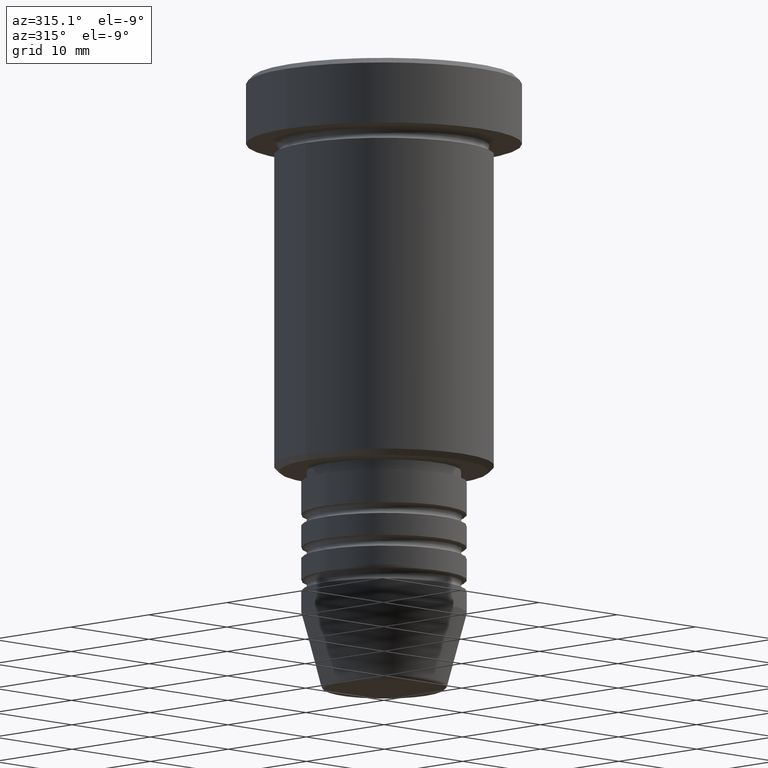
[diagram: clean part render]
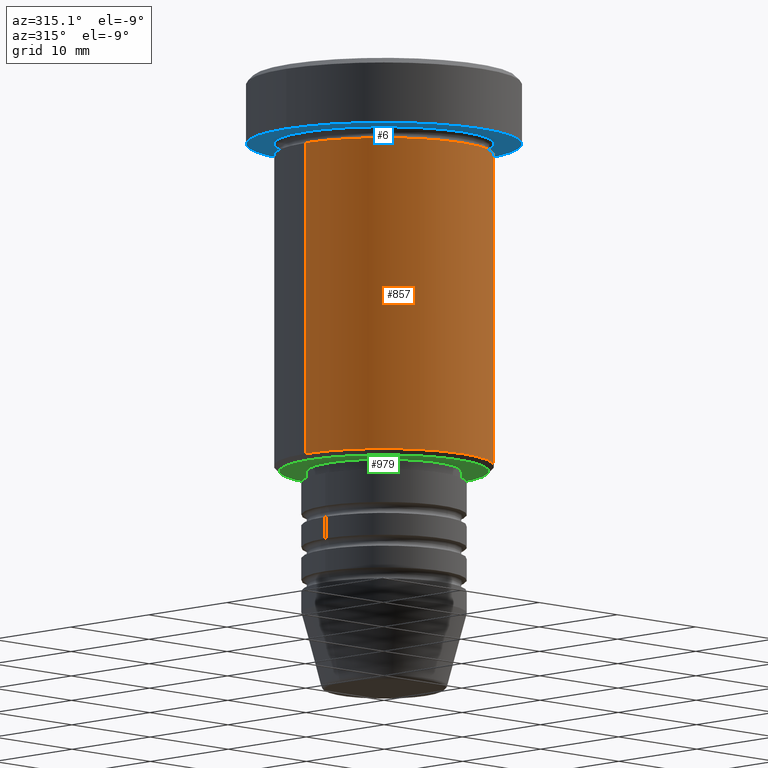
[diagram: same view with three faces highlighted in distinct colors, each labeled with its STEP entity id]
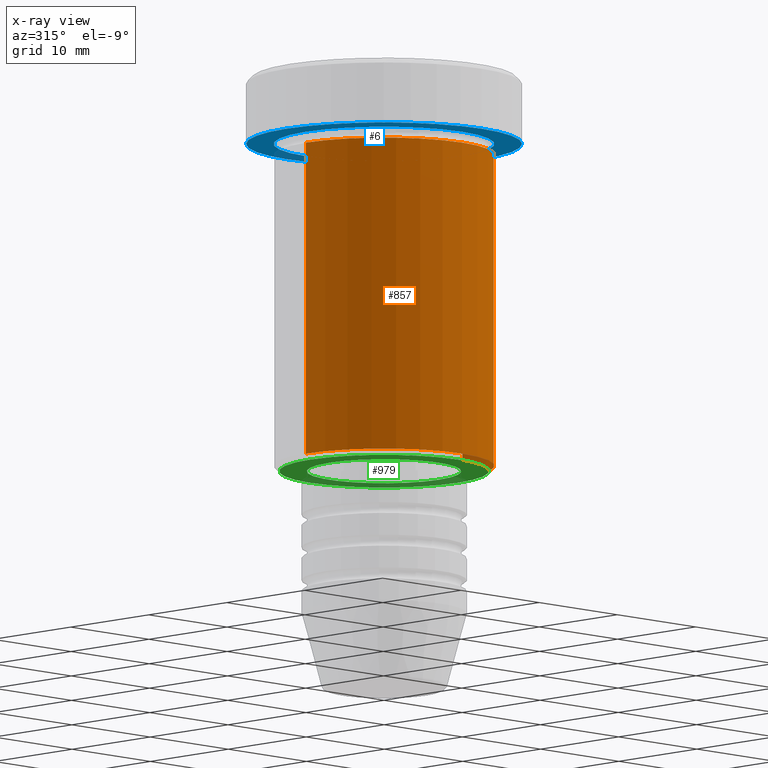
[diagram: x-ray of the same camera — body ghosted, the three highlighted faces saturated]
A machine part, auxiliary view with three faces highlighted in distinct colors.
The next image is the same camera in x-ray (body ghosted, the three faces saturated) — at least one of them is partly hidden behind the body in this view.
Their STEP definitions:

[orange] entity #857 — the highlighted cylindrical surface (partial cylindrical patch) has radius 10 mm, axis along (-0, -0, 1).
#10 = DIRECTION ( 'NONE',  ( -0.000000000000000000, -0.000000000000000000, 1.000000000000000000 ) ) ;
#17 = AXIS2_PLACEMENT_3D ( 'NONE', #562, #10, #997 ) ;
#42 = EDGE_CURVE ( 'NONE', #392, #903, #532, .T. ) ;
#46 = DIRECTION ( 'NONE',  ( -0.000000000000000000, -0.000000000000000000, 1.000000000000000000 ) ) ;
#70 = CYLINDRICAL_SURFACE ( 'NONE', #805, 10.00000000000000000 ) ;
#75 = VECTOR ( 'NONE', #46, 1000.000000000000000 ) ;
#79 = ORIENTED_EDGE ( 'NONE', *, *, #356, .F. ) ;
#92 = CIRCLE ( 'NONE', #17, 10.00000000000000000 ) ;
#140 = VECTOR ( 'NONE', #443, 1000.000000000000000 ) ;
#146 = LINE ( 'NONE', #862, #75 ) ;
#210 = VERTEX_POINT ( 'NONE', #660 ) ;
#318 = DIRECTION ( 'NONE',  ( -0.000000000000000000, -0.000000000000000000, 1.000000000000000000 ) ) ;
#348 = CARTESIAN_POINT ( 'NONE',  ( 10.00000000000000000, 0.000000000000000000, -6.999999999999996447 ) ) ;
#349 = CARTESIAN_POINT ( 'NONE',  ( 10.00000000000000000, 0.000000000000000000, 0.000000000000000000 ) ) ;
#356 = EDGE_CURVE ( 'NONE', #210, #1036, #146, .T. ) ;
#392 = VERTEX_POINT ( 'NONE', #950 ) ;
#443 = DIRECTION ( 'NONE',  ( -0.000000000000000000, -0.000000000000000000, 1.000000000000000000 ) ) ;
#474 = CARTESIAN_POINT ( 'NONE',  ( 0.000000000000000000, 0.000000000000000000, -35.50000000000000000 ) ) ;
#526 = DIRECTION ( 'NONE',  ( 1.000000000000000000, 0.000000000000000000, 0.000000000000000000 ) ) ;
#532 = LINE ( 'NONE', #349, #140 ) ;
#562 = CARTESIAN_POINT ( 'NONE',  ( 0.000000000000000000, 0.000000000000000000, -6.999999999999996447 ) ) ;
#599 = CIRCLE ( 'NONE', #1093, 10.00000000000000000 ) ;
#606 = FACE_OUTER_BOUND ( 'NONE', #634, .T. ) ;
#629 = EDGE_CURVE ( 'NONE', #1036, #903, #92, .T. ) ;
#634 = EDGE_LOOP ( 'NONE', ( #79, #922, #1040, #1057 ) ) ;
#660 = CARTESIAN_POINT ( 'NONE',  ( -10.00000000000000000, 1.224646799147353256E-15, -35.50000000000000000 ) ) ;
#771 = CARTESIAN_POINT ( 'NONE',  ( 0.000000000000000000, 0.000000000000000000, 0.000000000000000000 ) ) ;
#805 = AXIS2_PLACEMENT_3D ( 'NONE', #771, #1151, #526 ) ;
#836 = DIRECTION ( 'NONE',  ( -1.000000000000000000, 0.000000000000000000, 0.000000000000000000 ) ) ;
#857 = ADVANCED_FACE ( 'NONE', ( #606 ), #70, .T. ) ;
#862 = CARTESIAN_POINT ( 'NONE',  ( -10.00000000000000000, 1.224646799147353256E-15, 0.000000000000000000 ) ) ;
#903 = VERTEX_POINT ( 'NONE', #348 ) ;
#922 = ORIENTED_EDGE ( 'NONE', *, *, #1134, .T. ) ;
#950 = CARTESIAN_POINT ( 'NONE',  ( 10.00000000000000000, 0.000000000000000000, -35.50000000000000000 ) ) ;
#997 = DIRECTION ( 'NONE',  ( 1.000000000000000000, 0.000000000000000000, 0.000000000000000000 ) ) ;
#1036 = VERTEX_POINT ( 'NONE', #1125 ) ;
#1040 = ORIENTED_EDGE ( 'NONE', *, *, #42, .T. ) ;
#1057 = ORIENTED_EDGE ( 'NONE', *, *, #629, .F. ) ;
#1093 = AXIS2_PLACEMENT_3D ( 'NONE', #474, #318, #836 ) ;
#1125 = CARTESIAN_POINT ( 'NONE',  ( -10.00000000000000000, 1.224646799147353256E-15, -6.999999999999996447 ) ) ;
#1134 = EDGE_CURVE ( 'NONE', #210, #392, #599, .T. ) ;
#1151 = DIRECTION ( 'NONE',  ( -0.000000000000000000, -0.000000000000000000, 1.000000000000000000 ) ) ;

[blue] entity #6 — the highlighted planar face has unit normal (0, 0, -1).
#6 = ADVANCED_FACE ( 'NONE', ( #549, #1085 ), #811, .T. ) ;
#22 = EDGE_CURVE ( 'NONE', #61, #499, #543, .T. ) ;
#61 = VERTEX_POINT ( 'NONE', #276 ) ;
#89 = DIRECTION ( 'NONE',  ( -0.000000000000000000, -0.000000000000000000, 1.000000000000000000 ) ) ;
#90 = DIRECTION ( 'NONE',  ( 1.000000000000000000, 0.000000000000000000, 0.000000000000000000 ) ) ;
#111 = CIRCLE ( 'NONE', #181, 12.50000000000000000 ) ;
#166 = CARTESIAN_POINT ( 'NONE',  ( 0.000000000000000000, 12.50000000000000000, -5.999999999999996447 ) ) ;
#181 = AXIS2_PLACEMENT_3D ( 'NONE', #728, #632, #90 ) ;
#188 = ORIENTED_EDGE ( 'NONE', *, *, #22, .F. ) ;
#202 = ORIENTED_EDGE ( 'NONE', *, *, #569, .T. ) ;
#252 = CIRCLE ( 'NONE', #709, 10.00000000000000000 ) ;
#268 = DIRECTION ( 'NONE',  ( 0.000000000000000000, 0.000000000000000000, -1.000000000000000000 ) ) ;
#276 = CARTESIAN_POINT ( 'NONE',  ( -12.50000000000000000, 1.530808498934191521E-15, -5.999999999999996447 ) ) ;
#342 = DIRECTION ( 'NONE',  ( 1.000000000000000000, 0.000000000000000000, 0.000000000000000000 ) ) ;
#371 = EDGE_CURVE ( 'NONE', #672, #1152, #498, .T. ) ;
#375 = AXIS2_PLACEMENT_3D ( 'NONE', #166, #268, #1177 ) ;
#498 = CIRCLE ( 'NONE', #778, 10.00000000000000000 ) ;
#499 = VERTEX_POINT ( 'NONE', #921 ) ;
#504 = EDGE_CURVE ( 'NONE', #499, #61, #111, .T. ) ;
#543 = CIRCLE ( 'NONE', #1013, 12.50000000000000000 ) ;
#549 = FACE_BOUND ( 'NONE', #936, .T. ) ;
#569 = EDGE_CURVE ( 'NONE', #1152, #672, #252, .T. ) ;
#632 = DIRECTION ( 'NONE',  ( -0.000000000000000000, -0.000000000000000000, 1.000000000000000000 ) ) ;
#643 = CARTESIAN_POINT ( 'NONE',  ( 0.000000000000000000, 0.000000000000000000, -5.999999999999996447 ) ) ;
#672 = VERTEX_POINT ( 'NONE', #749 ) ;
#709 = AXIS2_PLACEMENT_3D ( 'NONE', #912, #812, #988 ) ;
#728 = CARTESIAN_POINT ( 'NONE',  ( 0.000000000000000000, 0.000000000000000000, -5.999999999999996447 ) ) ;
#749 = CARTESIAN_POINT ( 'NONE',  ( -10.00000000000000000, 0.000000000000000000, -5.999999999999996447 ) ) ;
#772 = EDGE_LOOP ( 'NONE', ( #1174, #188 ) ) ;
#778 = AXIS2_PLACEMENT_3D ( 'NONE', #963, #1136, #958 ) ;
#811 = PLANE ( 'NONE',  #375 ) ;
#812 = DIRECTION ( 'NONE',  ( -0.000000000000000000, -0.000000000000000000, 1.000000000000000000 ) ) ;
#850 = CARTESIAN_POINT ( 'NONE',  ( 10.00000000000000000, 1.224646799147353256E-15, -5.999999999999996447 ) ) ;
#912 = CARTESIAN_POINT ( 'NONE',  ( 0.000000000000000000, 0.000000000000000000, -5.999999999999996447 ) ) ;
#921 = CARTESIAN_POINT ( 'NONE',  ( 12.50000000000000000, 0.000000000000000000, -5.999999999999996447 ) ) ;
#936 = EDGE_LOOP ( 'NONE', ( #1041, #202 ) ) ;
#958 = DIRECTION ( 'NONE',  ( -1.000000000000000000, 0.000000000000000000, 0.000000000000000000 ) ) ;
#963 = CARTESIAN_POINT ( 'NONE',  ( 0.000000000000000000, 0.000000000000000000, -5.999999999999996447 ) ) ;
#988 = DIRECTION ( 'NONE',  ( -1.000000000000000000, 0.000000000000000000, 0.000000000000000000 ) ) ;
#1013 = AXIS2_PLACEMENT_3D ( 'NONE', #643, #89, #342 ) ;
#1041 = ORIENTED_EDGE ( 'NONE', *, *, #371, .T. ) ;
#1085 = FACE_OUTER_BOUND ( 'NONE', #772, .T. ) ;
#1136 = DIRECTION ( 'NONE',  ( -0.000000000000000000, -0.000000000000000000, 1.000000000000000000 ) ) ;
#1152 = VERTEX_POINT ( 'NONE', #850 ) ;
#1174 = ORIENTED_EDGE ( 'NONE', *, *, #504, .F. ) ;
#1177 = DIRECTION ( 'NONE',  ( -1.000000000000000000, 0.000000000000000000, -0.000000000000000000 ) ) ;

[green] entity #979 — the highlighted planar face has unit normal (0, 0, -1).
#68 = DIRECTION ( 'NONE',  ( 1.000000000000000000, 0.000000000000000000, 0.000000000000000000 ) ) ;
#98 = ORIENTED_EDGE ( 'NONE', *, *, #380, .T. ) ;
#130 = AXIS2_PLACEMENT_3D ( 'NONE', #616, #169, #68 ) ;
#133 = CARTESIAN_POINT ( 'NONE',  ( 0.000000000000000000, 0.000000000000000000, -36.00000000000000000 ) ) ;
#159 = CIRCLE ( 'NONE', #826, 6.999999999999999112 ) ;
#169 = DIRECTION ( 'NONE',  ( -0.000000000000000000, -0.000000000000000000, 1.000000000000000000 ) ) ;
#177 = FACE_OUTER_BOUND ( 'NONE', #966, .T. ) ;
#179 = CARTESIAN_POINT ( 'NONE',  ( 9.500000000000008882, 0.000000000000000000, -36.00000000000000000 ) ) ;
#186 = DIRECTION ( 'NONE',  ( -1.000000000000000000, 0.000000000000000000, -0.000000000000000000 ) ) ;
#228 = DIRECTION ( 'NONE',  ( -1.000000000000000000, 0.000000000000000000, 0.000000000000000000 ) ) ;
#230 = CARTESIAN_POINT ( 'NONE',  ( -9.500000000000008882, 1.194030629168669864E-15, -36.00000000000000000 ) ) ;
#240 = VERTEX_POINT ( 'NONE', #1011 ) ;
#262 = FACE_BOUND ( 'NONE', #293, .T. ) ;
#272 = ORIENTED_EDGE ( 'NONE', *, *, #453, .T. ) ;
#287 = AXIS2_PLACEMENT_3D ( 'NONE', #531, #810, #186 ) ;
#293 = EDGE_LOOP ( 'NONE', ( #604, #272 ) ) ;
#380 = EDGE_CURVE ( 'NONE', #573, #780, #1047, .T. ) ;
#415 = EDGE_CURVE ( 'NONE', #780, #573, #534, .T. ) ;
#452 = VERTEX_POINT ( 'NONE', #974 ) ;
#453 = EDGE_CURVE ( 'NONE', #240, #452, #649, .T. ) ;
#455 = PLANE ( 'NONE',  #287 ) ;
#488 = CARTESIAN_POINT ( 'NONE',  ( 0.000000000000000000, 0.000000000000000000, -36.00000000000000000 ) ) ;
#512 = DIRECTION ( 'NONE',  ( -1.000000000000000000, 0.000000000000000000, 0.000000000000000000 ) ) ;
#531 = CARTESIAN_POINT ( 'NONE',  ( 0.000000000000000000, 10.00000000000000000, -36.00000000000000000 ) ) ;
#534 = CIRCLE ( 'NONE', #1142, 9.500000000000008882 ) ;
#573 = VERTEX_POINT ( 'NONE', #179 ) ;
#584 = DIRECTION ( 'NONE',  ( 0.000000000000000000, 0.000000000000000000, -1.000000000000000000 ) ) ;
#604 = ORIENTED_EDGE ( 'NONE', *, *, #1014, .T. ) ;
#616 = CARTESIAN_POINT ( 'NONE',  ( 0.000000000000000000, 0.000000000000000000, -36.00000000000000000 ) ) ;
#649 = CIRCLE ( 'NONE', #130, 6.999999999999999112 ) ;
#780 = VERTEX_POINT ( 'NONE', #230 ) ;
#810 = DIRECTION ( 'NONE',  ( 0.000000000000000000, 0.000000000000000000, -1.000000000000000000 ) ) ;
#826 = AXIS2_PLACEMENT_3D ( 'NONE', #1028, #1132, #1113 ) ;
#833 = ORIENTED_EDGE ( 'NONE', *, *, #415, .T. ) ;
#848 = DIRECTION ( 'NONE',  ( 0.000000000000000000, 0.000000000000000000, -1.000000000000000000 ) ) ;
#874 = AXIS2_PLACEMENT_3D ( 'NONE', #488, #848, #512 ) ;
#966 = EDGE_LOOP ( 'NONE', ( #98, #833 ) ) ;
#974 = CARTESIAN_POINT ( 'NONE',  ( 6.999999999999999112, 0.000000000000000000, -36.00000000000000000 ) ) ;
#979 = ADVANCED_FACE ( 'NONE', ( #177, #262 ), #455, .T. ) ;
#1011 = CARTESIAN_POINT ( 'NONE',  ( -6.999999999999999112, 8.572527594031472204E-16, -36.00000000000000000 ) ) ;
#1014 = EDGE_CURVE ( 'NONE', #452, #240, #159, .T. ) ;
#1028 = CARTESIAN_POINT ( 'NONE',  ( 0.000000000000000000, 0.000000000000000000, -36.00000000000000000 ) ) ;
#1047 = CIRCLE ( 'NONE', #874, 9.500000000000008882 ) ;
#1113 = DIRECTION ( 'NONE',  ( 1.000000000000000000, 0.000000000000000000, 0.000000000000000000 ) ) ;
#1132 = DIRECTION ( 'NONE',  ( -0.000000000000000000, -0.000000000000000000, 1.000000000000000000 ) ) ;
#1142 = AXIS2_PLACEMENT_3D ( 'NONE', #133, #584, #228 ) ;